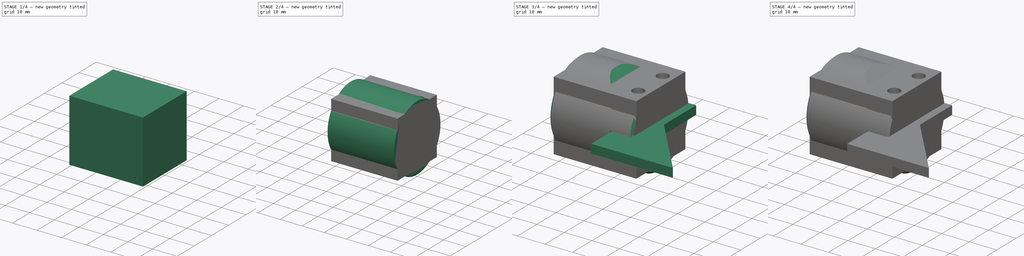
[diagram: build sequence overview — one tinted view per stage of 4, left to right]
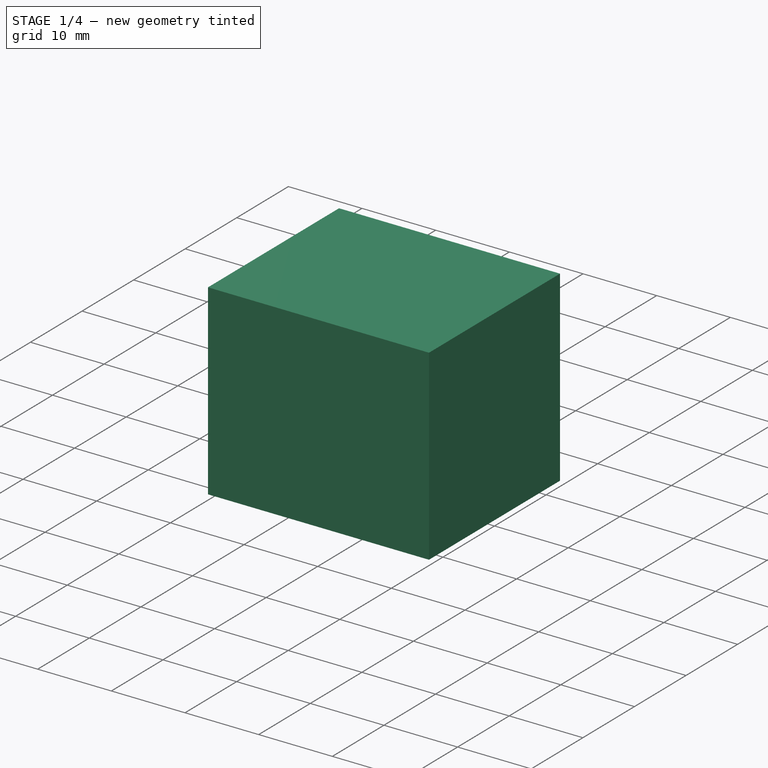
[diagram: stage 1 of 4 — iso view after this stage's code; geometry added in this stage tinted green]
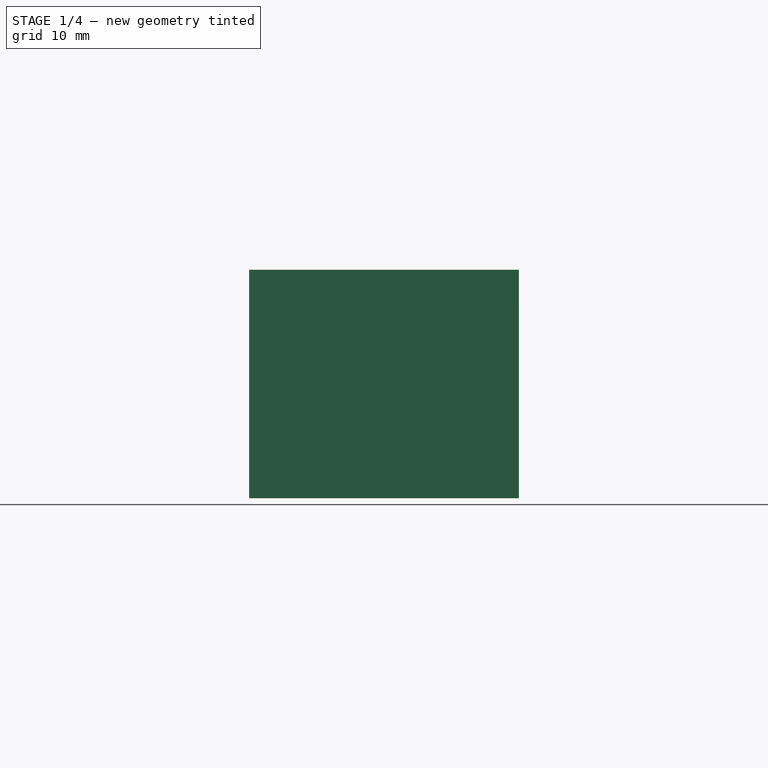
[diagram: stage 1 of 4 — front view after this stage's code; geometry added in this stage tinted green]
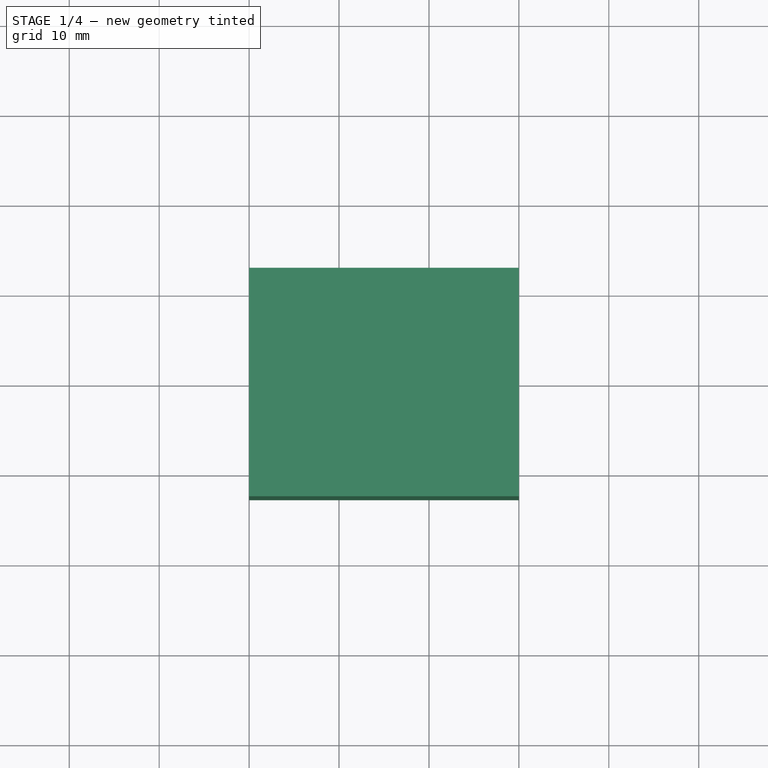
[diagram: stage 1 of 4 — top view after this stage's code; geometry added in this stage tinted green]
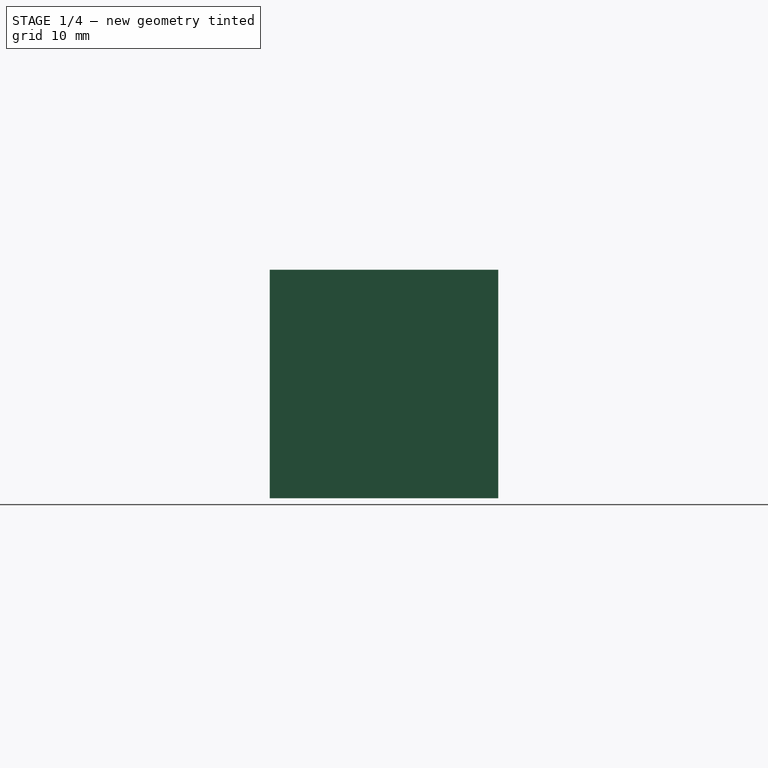
[diagram: stage 1 of 4 — right view after this stage's code; geometry added in this stage tinted green]
FCSTD DOCUMENT  (FreeCAD 0.17R11939 (Git))
Label: holesaw_pointer
License: All rights reserved
LicenseURL: http://en.wikipedia.org/wiki/All_rights_reserved
objects: Sketcher::SketchObject×10, PartDesign::Pocket×6, Drawing::FeatureViewPart×4, PartDesign::Pad×3, PartDesign::Body×3, PartDesign::Plane×1, PartDesign::Chamfer×1, App::FeaturePython×1, PartDesign::ShapeBinder×1, Drawing::FeaturePage×1
note: 35 computed .brp shape members not serialized (recipe doc carries the construction recipe); baked Part::Feature solids carry a one-line shape summary decoded from their .brp

FEATURE [PartDesign::Body] Body
  Group = -> [Sketch001,Pad,Chamfer,DatumPlane,Sketch002,Pocket,Sketch003,Pocket001,Sketch004,Pocket002]
  Origin = -> Origin
  Tip = -> Pocket002
FEATURE [App::FeaturePython] Section  # WARN: FeaturePython — macro-defined, semantics opaque (R4)
  Objects = -> [Pocket002]
  OnlySolids = true
  Placement = pos=(0,0,0) rot=(1,0,0;1.5708rad)
FEATURE [Sketcher::SketchObject] Sketch006
  MapMode = 5
  Support = -> [XY_Plane002]
  sketch-geometry (4):
    g0: LineSegment StartX=0 StartY=12.7 StartZ=0 EndX=30 EndY=12.7 EndZ=0
    g1: LineSegment StartX=30 StartY=12.7 StartZ=0 EndX=30 EndY=-12.7 EndZ=0
    g2: LineSegment StartX=30 StartY=-12.7 StartZ=0 EndX=0 EndY=-12.7 EndZ=0
    g3: LineSegment StartX=0 StartY=-12.7 StartZ=0 EndX=0 EndY=12.7 EndZ=0
  constraints (12):
    c: Coincident(g0,g1)
    c: Coincident(g1,g2)
    c: Coincident(g2,g3)
    c: Coincident(g3,g0)
    c: Horizontal(g0)
    c: Horizontal(g2)
    c: Vertical(g1)
    c: Vertical(g3)
    c: PointOnObject(g0,g-2)
    c: Distance(g2) = 30
    c: Symmetric(g2,g0,g-1)
    c: Distance(g3) = 25.4
FEATURE [PartDesign::Pad] Pad002
  Length = 25.4
  Length2 = 100
  Midplane = true
  Profile = -> Sketch006
  Type = 0
FEATURE [Sketcher::SketchObject] Sketch007
  MapMode = 5
  Placement = pos=(0,0,0) rot=(0.57735,-0.57735,-0.57735;2.0944rad)
  Support = -> [Pad002]
  sketch-geometry (1):
    g0: Circle CenterX=0 CenterY=0 CenterZ=0 NormalX=0 NormalY=0 NormalZ=1 Radius=7.25
  constraints (2):
    c: Coincident(g0,g-1)
    c: Radius(g0) = 7.25
FEATURE [PartDesign::Pocket] Pocket003
  BaseFeature = -> Pad002
  Length = 17
  Profile = -> Sketch007
  Type = 0
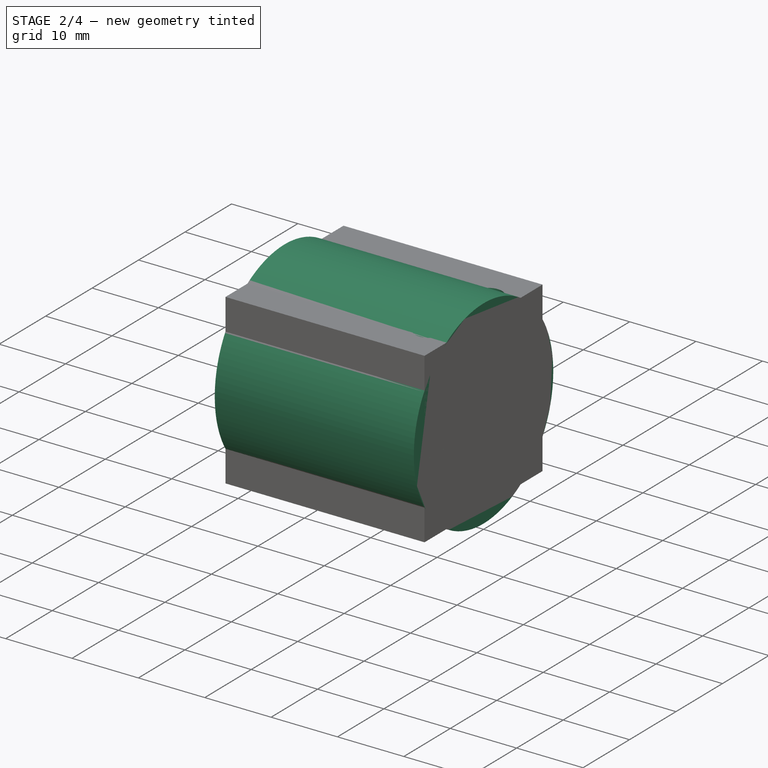
[diagram: stage 2 of 4 — iso view after this stage's code; geometry added in this stage tinted green]
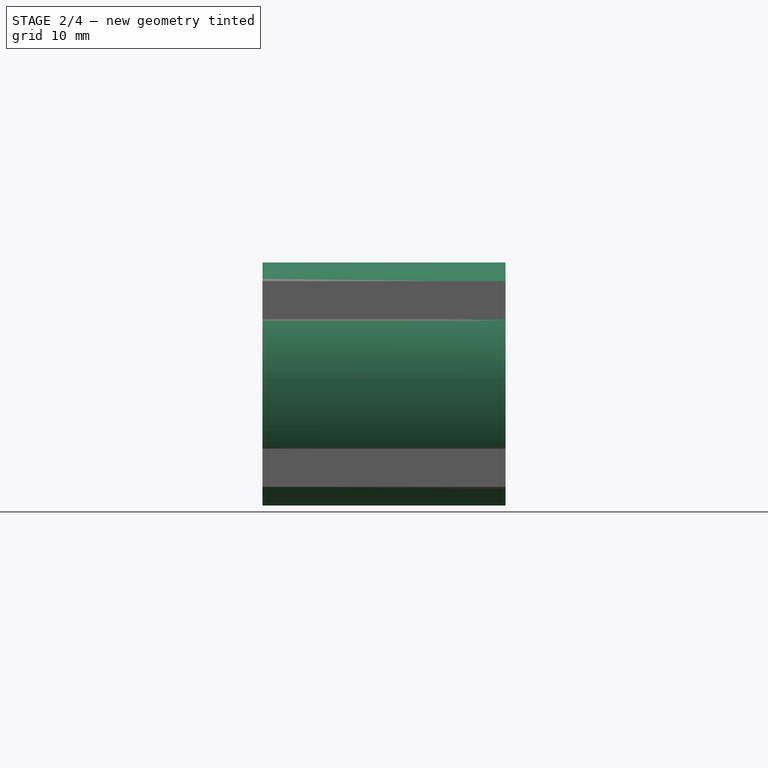
[diagram: stage 2 of 4 — front view after this stage's code; geometry added in this stage tinted green]
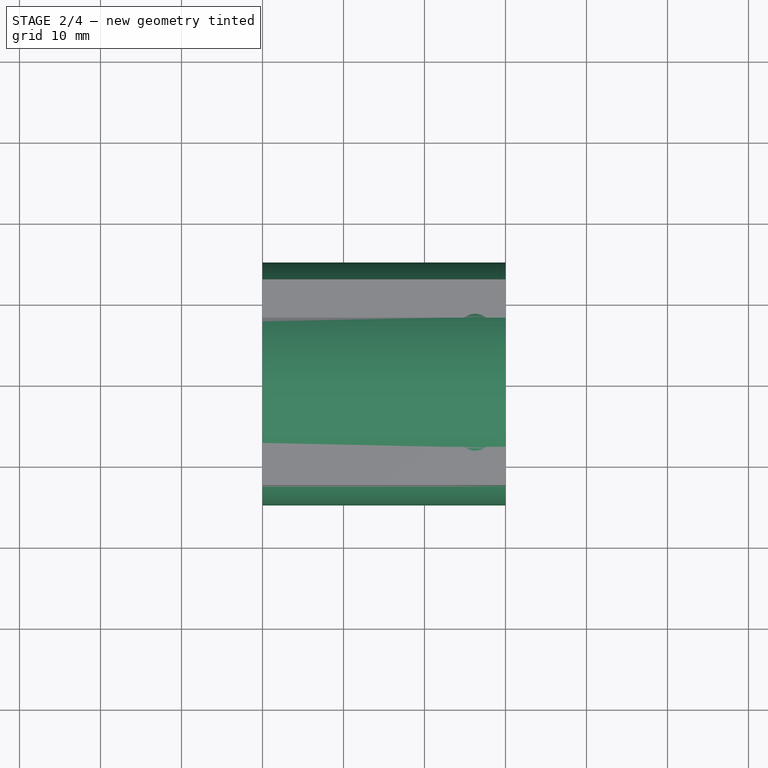
[diagram: stage 2 of 4 — top view after this stage's code; geometry added in this stage tinted green]
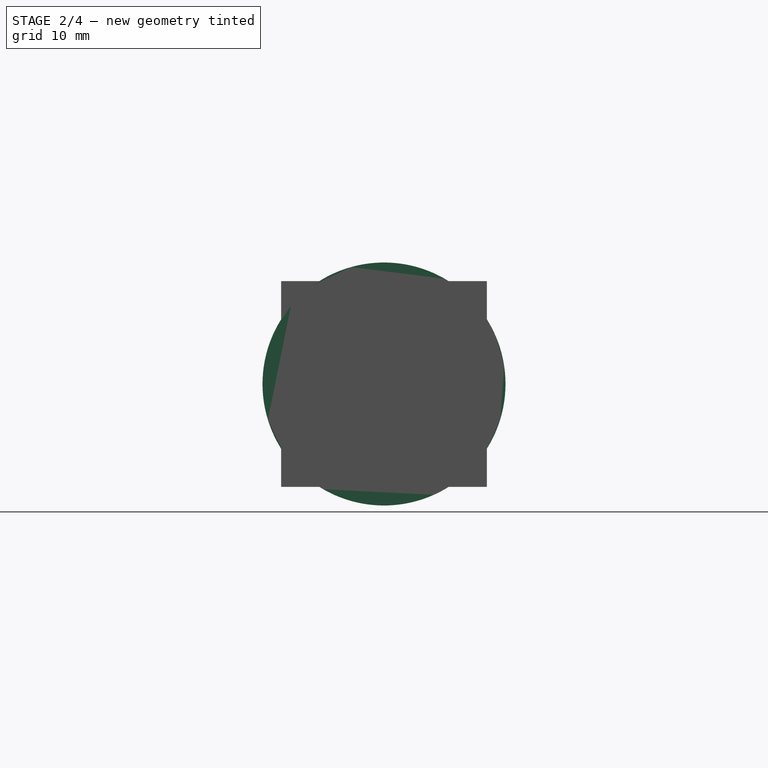
[diagram: stage 2 of 4 — right view after this stage's code; geometry added in this stage tinted green]
FEATURE [Sketcher::SketchObject] Sketch
  sketch-geometry (12):
    g0: LineSegment StartX=0 StartY=12.7 StartZ=0 EndX=0 EndY=7.25 EndZ=0
    g1: LineSegment StartX=0 StartY=7.25 StartZ=0 EndX=20 EndY=7.25 EndZ=0
    g2: LineSegment StartX=0 StartY=12.7 StartZ=0 EndX=35 EndY=12.7 EndZ=0
    g3: LineSegment StartX=35 StartY=12.7 StartZ=0 EndX=56.997 EndY=0 EndZ=0
    g4: LineSegment StartX=0 StartY=-12.7 StartZ=0 EndX=0 EndY=-7.25 EndZ=0
    g5: LineSegment StartX=0 StartY=-7.25 StartZ=0 EndX=20 EndY=-7.25 EndZ=0
    g6: LineSegment StartX=0 StartY=-12.7 StartZ=0 EndX=35 EndY=-12.7 EndZ=0
    g7: LineSegment StartX=35 StartY=-12.7 StartZ=0 EndX=56.997 EndY=0 EndZ=0
    g8: LineSegment StartX=20 StartY=7.25 StartZ=0 EndX=23.3807 EndY=0 EndZ=0
    g9: LineSegment StartX=23.3807 StartY=0 StartZ=0 EndX=20 EndY=-7.25 EndZ=0
    g10: Circle [constr] CenterX=63.803 CenterY=-25.4 CenterZ=0 NormalX=0 NormalY=0 NormalZ=1 Radius=25.4
    g11: GeomPoint X=63.803 Y=0 Z=0
  constraints (36):
    c: PointOnObject(g0,g-2)
    c: PointOnObject(g0,g-2)
    c: Coincident(g1,g0)
    c: Horizontal(g1)
    c: Coincident(g2,g0)
    c: Horizontal(g2)
    c: PointOnObject(g3,g-1)
    c: Coincident(g5,g4)
    c: Horizontal(g5)
    c: Coincident(g6,g4)
    c: Horizontal(g6)
    c: Symmetric(g4,g0,g-1)
    c: Equal(g0,g4)
    c: Equal(g2,g6)
    c: Coincident(g3,g7)
    c: Vertical(g4)
    c: DistanceY(g4,g0) = 25.4
    c: Distance(g1) = 20
    c: Angle(g-1,g7) = 0.523599
    c: DistanceX(g0,g3) = 56.997
    c: Coincident(g8,g1)
    c: PointOnObject(g8,g-1)
    c: Coincident(g9,g8)
    c: Coincident(g9,g5)
    c: Angle(g8,g9) = 2.26893
    c: Distance(g0,g4) = 14.5
    c: Equal(g5,g1)
    c: Coincident(g2,g3)
    c: Coincident(g6,g7)
    c: Distance(g2) = 35
    c: Radius(g10) = 25.4
    c: DistanceY(g10,g-1) = 25.4
    c: Tangent(g10,g7)
    c: PointOnObject(g11,g10)
    c: PointOnObject(g11,g-1)
    c: Distance(g11,g3) = 6.80594
FEATURE [Sketcher::SketchObject] Sketch001
  MapMode = 5
  Placement = pos=(0,0,0) rot=(0.57735,0.57735,0.57735;2.0944rad)
  Support = -> [YZ_Plane]
  sketch-geometry (1):
    g0: Circle CenterX=0 CenterY=0 CenterZ=0 NormalX=0 NormalY=0 NormalZ=1 Radius=15
  constraints (2):
    c: Coincident(g0,g-1)
    c: Radius(g0) = 15
FEATURE [PartDesign::Pad] Pad
  Length = 30
  Length2 = 100
  Placement = pos=(0,0,0) rot=(0.57735,0.57735,0.57735;2.0944rad)
  Profile = -> Sketch001
  Type = 0
FEATURE [Sketcher::SketchObject] Sketch008
  ExternalGeometry = -> [Pocket003]
  MapMode = 5
  Placement = pos=(0,-12.7,0) rot=(1,0,0;1.5708rad)
  Support = -> [Pocket003]
  expr: Constraints[17] = -(1in / 16)
  sketch-geometry (10):
    g0: LineSegment StartX=41 StartY=-1.5875 StartZ=0 EndX=22.5 EndY=-1.5875 EndZ=0
    g1: LineSegment StartX=22.5 StartY=-1.5875 StartZ=0 EndX=22.5 EndY=3.175 EndZ=0
    g2: LineSegment StartX=22.5 StartY=3.175 StartZ=0 EndX=36 EndY=3.175 EndZ=0
    g3: LineSegment StartX=36 StartY=3.175 StartZ=0 EndX=36 EndY=18.175 EndZ=0
    g4: LineSegment StartX=36 StartY=18.175 StartZ=0 EndX=21 EndY=18.175 EndZ=0
    g5: LineSegment StartX=21 StartY=18.175 StartZ=0 EndX=21 EndY=33.175 EndZ=0
    g6: LineSegment StartX=21 StartY=33.175 StartZ=0 EndX=41 EndY=33.175 EndZ=0
    g7: LineSegment StartX=41 StartY=33.175 StartZ=0 EndX=41 EndY=-1.5875 EndZ=0
    g8: GeomPoint X=30 Y=3.175 Z=0
    g9: GeomPoint X=30 Y=18.175 Z=0
  constraints (28):
    c: Horizontal(g0)
    c: Coincident(g0,g1)
    c: Vertical(g1)
    c: Coincident(g1,g2)
    c: Horizontal(g2)
    c: Coincident(g2,g3)
    c: Vertical(g3)
    c: Coincident(g3,g4)
    c: Horizontal(g4)
    c: Coincident(g4,g5)
    c: Vertical(g5)
    c: Coincident(g5,g6)
    c: Horizontal(g6)
    c: Coincident(g6,g7)
    c: Vertical(g7)
    c: Coincident(g0,g7)
    c: Distance(g1) = 4.7625
    c: DistanceY(g-1,g0) = -1.5875
    c: Distance(g3) = 15
    c: PointOnObject(g8,g2)
    c: PointOnObject(g8,g-3)
    c: PointOnObject(g9,g4)
    c: PointOnObject(g9,g-3)
    c: Distance(g8,g1) = 7.5
    c: Distance(g9,g4) = 9
    c: Distance(g5) = 15
    c: Distance(g6) = 20
    c: Distance(g4) = 15
FEATURE [PartDesign::Pocket] Pocket004
  BaseFeature = -> Pocket003
  Length = 5
  Profile = -> Sketch008
  Type = 1
FEATURE [PartDesign::Body] Body001
  Group = -> [Sketch005,Pad001,ShapeBinder001]
  Origin = -> Origin001
  Tip = -> Pad001
FEATURE [Sketcher::SketchObject] Sketch010
  ExternalGeometry = -> [Pocket004]
  MapMode = 5
  Placement = pos=(0,0,12.7) rot=(0,0,1;0rad)
  Support = -> [Pocket004]
  sketch-geometry (9):
    g0: Circle [constr] CenterX=26.25 CenterY=-6.35 CenterZ=0 NormalX=0 NormalY=0 NormalZ=1 Radius=4.25
    g1: Circle CenterX=26.25 CenterY=-6.35 CenterZ=0 NormalX=0 NormalY=0 NormalZ=1 Radius=2.1
    g2: Circle CenterX=26.25 CenterY=6.35 CenterZ=0 NormalX=0 NormalY=0 NormalZ=1 Radius=2.1
    g3: Circle [constr] CenterX=26.25 CenterY=6.35 CenterZ=0 NormalX=0 NormalY=0 NormalZ=1 Radius=4.25
    g4: LineSegment [constr] StartX=30.5 StartY=6.35 StartZ=0 EndX=30 EndY=6.35 EndZ=0
    g5: LineSegment [constr] StartX=26.25 StartY=-6.35 StartZ=0 EndX=26.25 EndY=-12.7 EndZ=0
    g6: LineSegment [constr] StartX=26.25 StartY=6.35 StartZ=0 EndX=26.25 EndY=12.7 EndZ=0
    g7: LineSegment [constr] StartX=26.25 StartY=-6.35 StartZ=0 EndX=26.25 EndY=0 EndZ=0
    g8: LineSegment [constr] StartX=26.25 StartY=0 StartZ=0 EndX=26.25 EndY=6.35 EndZ=0
  constraints (25):
    c: Radius(g0) = 4.25
    c: Coincident(g1,g0)
    c: Radius(g1) = 2.1
    c: Equal(g2,g1)
    c: Equal(g3,g0)
    c: PointOnObject(g4,g3)
    c: PointOnObject(g4,g-3)
    c: Horizontal(g4)
    c: Perpendicular(g3,g4)
    c: DistanceX(g4,g4) = 0.5
    c: Coincident(g5,g0)
    c: Vertical(g5)
    c: DistanceY(g-3,g5) = 0
    c: Vertical(g6)
    c: DistanceY(g6,g-3) = 0
    c: Equal(g6,g5)
    c: Coincident(g7,g0)
    c: PointOnObject(g7,g-1)
    c: Vertical(g7)
    c: Coincident(g8,g7)
    c: Coincident(g8,g2)
    c: Vertical(g8)
    c: Coincident(g2,g3)
    c: Coincident(g2,g6)
    c: Equal(g6,g8)
FEATURE [PartDesign::Pocket] Pocket005
  BaseFeature = -> Pocket004
  Length = 5
  Profile = -> Sketch010
  Type = 2
FEATURE [PartDesign::Body] Body002
  Group = -> [Sketch006,Pad002,Sketch007,Pocket003,Sketch008,Pocket004,Sketch010,Pocket005]
  Origin = -> Origin002
  Tip = -> Pocket005
FEATURE [Drawing::FeatureViewPart] Ortho006  label="Ortho_0_002"
  Direction = (1,0,0)
  HiddenWidth = 0.15
  LineWidth = 0.35
  Rotation = -90
  ShowHiddenLines = true
  ShowSmoothLines = true
  Source = -> Pocket005
  Tolerance = 0.05
  ViewResult = <blob: 5947 chars omitted>
  Visible = true
  X = 170
  Y = 121.933
FEATURE [Drawing::FeatureViewPart] Ortho007  label="Ortho_1_002"
  Direction = (0.57735,0.57735,0.57735)
  HiddenWidth = 0.15
  LineWidth = 0.35
  Rotation = 120
  ShowHiddenLines = true
  ShowSmoothLines = true
  Source = -> Pocket005
  Tolerance = 0.05
  ViewResult = <blob: 3827 chars omitted>
  Visible = true
  X = 240.607
  Y = 65.8096
FEATURE [Drawing::FeatureViewPart] Ortho008  label="Ortho_1_003"
  Direction = (0,1,0)
  HiddenWidth = 0.15
  LineWidth = 0.35
  Rotation = -90
  ShowHiddenLines = true
  ShowSmoothLines = true
  Source = -> Pocket005
  Tolerance = 0.05
  ViewResult = <blob: 4758 chars omitted>
  Visible = true
  X = 245
  Y = 121.933
FEATURE [Drawing::FeatureViewPart] Ortho009  label="Ortho_0_003"
  Direction = (0,0,1)
  HiddenWidth = 0.15
  LineWidth = 0.35
  Rotation = 90
  ShowHiddenLines = true
  ShowSmoothLines = true
  Source = -> Pocket005
  Tolerance = 0.05
  ViewResult = <blob: 2415 chars omitted>
  Visible = true
  X = 170
  Y = 56.9333
FEATURE [Drawing::FeaturePage] Page
  EditableTexts = AUTHOR NAME | CREATION DATE | SUPERVISOR NAME | CHECK DATE | SCALE | WEIGHT | NUMBER | SHEET | TITLE | SUBTITLE
  Group = -> [Ortho006,Ortho007,Ortho008,Ortho009]
  Template = <path>
note: 1 file-system path scrubbed to <path> (originals preserved in the JSON sidecar)
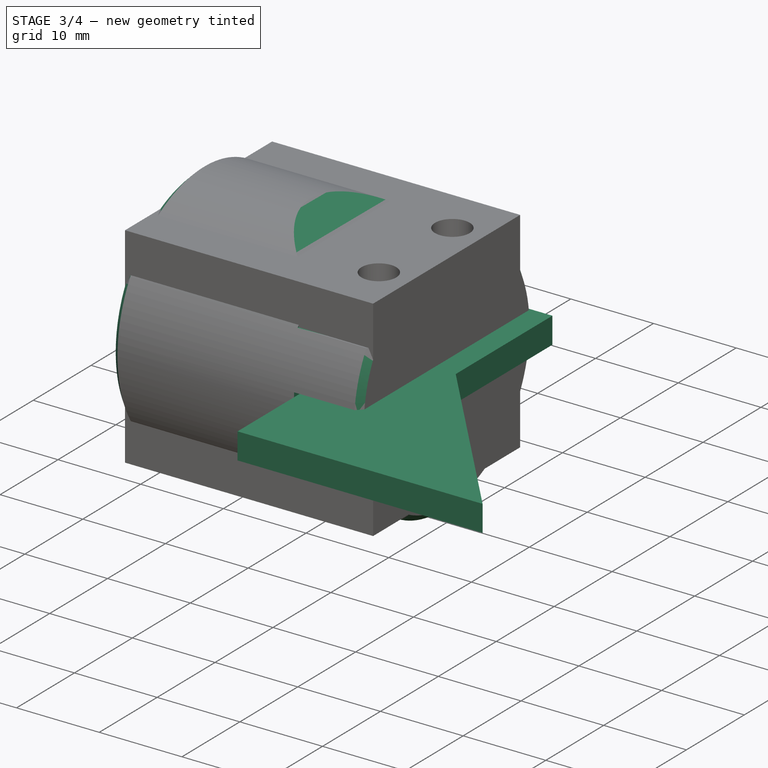
[diagram: stage 3 of 4 — iso view after this stage's code; geometry added in this stage tinted green]
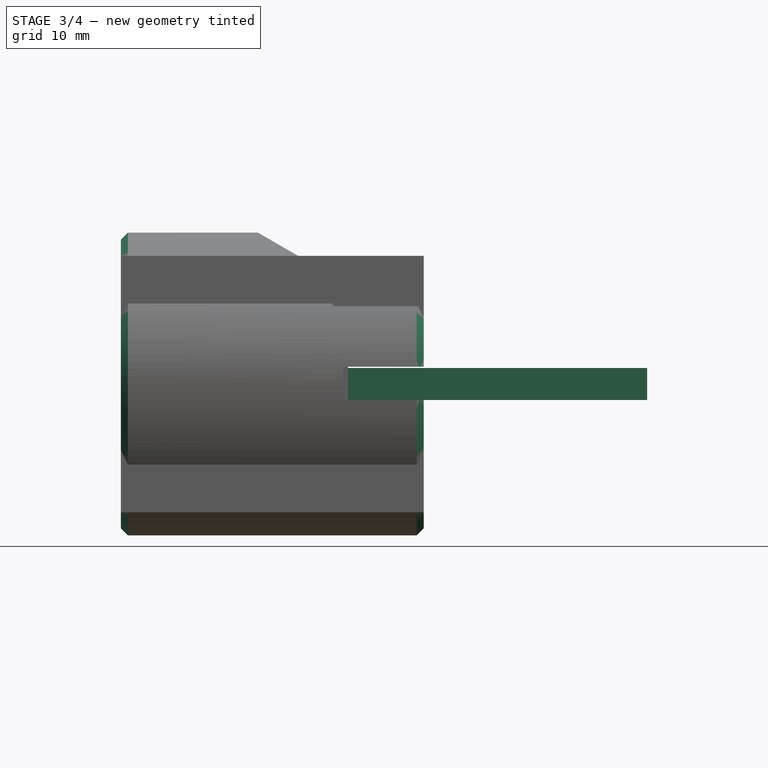
[diagram: stage 3 of 4 — front view after this stage's code; geometry added in this stage tinted green]
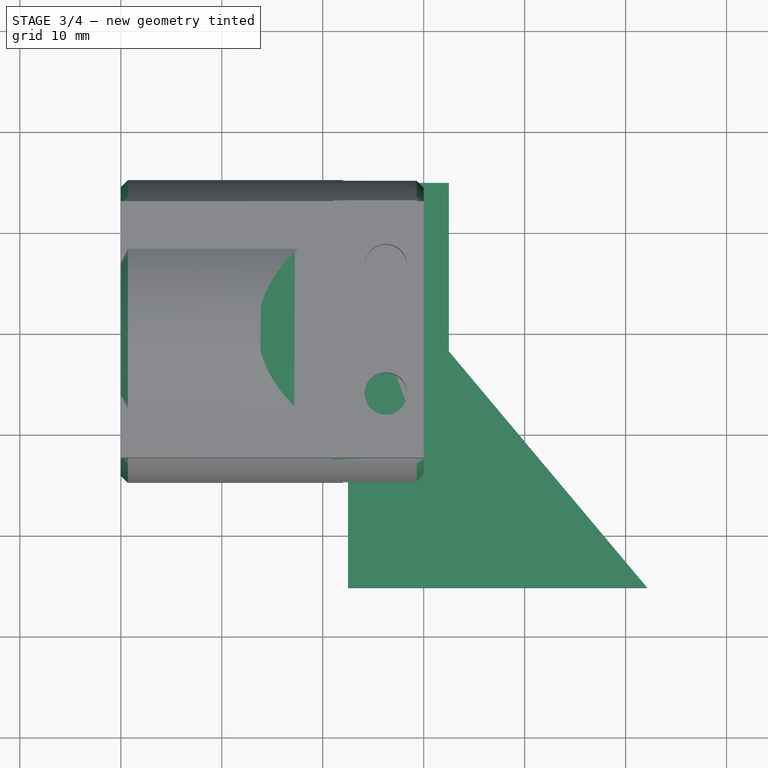
[diagram: stage 3 of 4 — top view after this stage's code; geometry added in this stage tinted green]
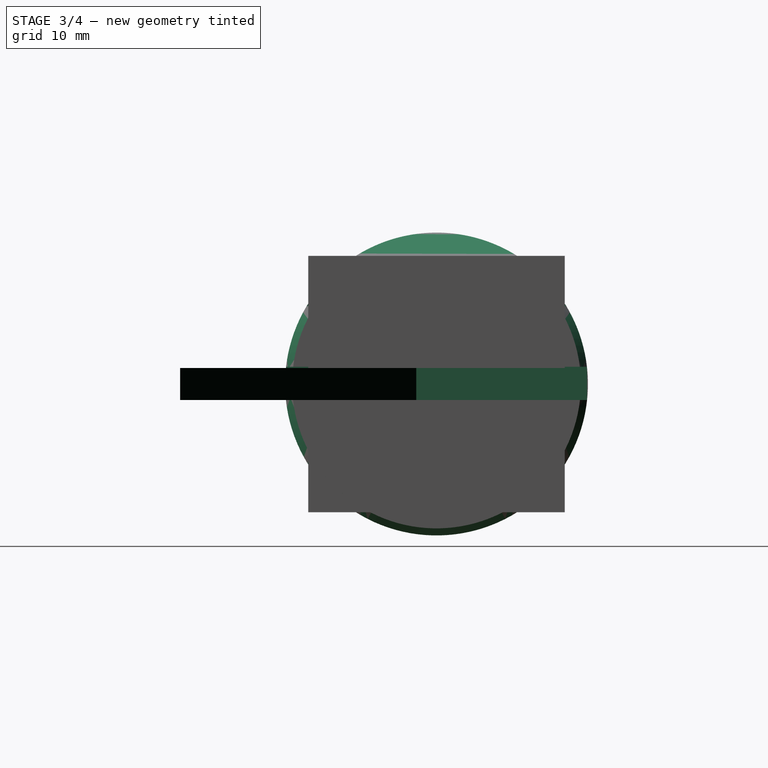
[diagram: stage 3 of 4 — right view after this stage's code; geometry added in this stage tinted green]
FEATURE [PartDesign::Plane] DatumPlane
  MapMode = 45
  Placement = pos=(15,0,0) rot=(1,0,0;1.5708rad)
  Support = -> [Pad]
  superPlacement = pos=(0,0,0) rot=(0,-1,0;1.5708rad)
FEATURE [Sketcher::SketchObject] Sketch002
  ExternalGeometry = -> [Pad]
  MapMode = 5
  Placement = pos=(15,0,0) rot=(1,0,0;1.5708rad)
  Support = -> [DatumPlane]
  sketch-geometry (13):
    g0: LineSegment StartX=15 StartY=-1.5875 StartZ=0 EndX=7 EndY=-1.5875 EndZ=0
    g1: LineSegment StartX=7 StartY=-1.5875 StartZ=0 EndX=7 EndY=1.7125 EndZ=0
    g2: LineSegment StartX=7 StartY=1.7125 StartZ=0 EndX=15 EndY=1.7125 EndZ=0
    g3: LineSegment StartX=15 StartY=1.7125 StartZ=0 EndX=15 EndY=7.7125 EndZ=0
    g4: LineSegment StartX=15 StartY=7.7125 StartZ=0 EndX=6 EndY=7.7125 EndZ=0
    g5: LineSegment StartX=-4.99852 StartY=38.7125 StartZ=0 EndX=16 EndY=38.7125 EndZ=0
    g6: LineSegment StartX=16 StartY=38.7125 StartZ=0 EndX=16 EndY=-1.5875 EndZ=0
    g7: LineSegment StartX=16 StartY=-1.5875 StartZ=0 EndX=15 EndY=-1.5875 EndZ=0
    g8: LineSegment StartX=-4.99852 StartY=38.7125 StartZ=0 EndX=-4.99852 EndY=17.0625 EndZ=0
    g9: LineSegment StartX=-4.99852 StartY=17.0625 StartZ=0 EndX=6 EndY=10.7125 EndZ=0
    g10: LineSegment StartX=6 StartY=10.7125 StartZ=0 EndX=6 EndY=7.7125 EndZ=0
    g11: LineSegment [constr] StartX=-4.99852 StartY=17.0625 StartZ=0 EndX=6 EndY=23.4125 EndZ=0
    g12: LineSegment [constr] StartX=-4.99852 StartY=17.0625 StartZ=0 EndX=16 EndY=17.0625 EndZ=0
  constraints (38):
    c: PointOnObject(g0,g-3)
    c: Horizontal(g0)
    c: Coincident(g1,g0)
    c: Vertical(g1)
    c: Coincident(g2,g1)
    c: PointOnObject(g2,g-3)
    c: Horizontal(g2)
    c: Coincident(g3,g2)
    c: PointOnObject(g3,g-3)
    c: Coincident(g4,g3)
    c: Horizontal(g4)
    c: Horizontal(g5)
    c: Vertical(g6)
    c: Coincident(g7,g6)
    c: Coincident(g7,g0)
    c: Horizontal(g7)
    c: Coincident(g5,g6)
    c: Distance(g1) = 3.3
    c: DistanceY(g0,g-1) = 1.5875
    c: Distance(g7) = 1
    c: DistanceY(g1,g4) = 6
    c: Distance(g4) = 9
    c: Distance(g2) = 8
    c: Distance(g6) = 40.3
    c: Coincident(g8,g5)
    c: Coincident(g9,g8)
    c: Coincident(g10,g9)
    c: Coincident(g10,g4)
    c: Vertical(g10)
    c: Vertical(g8)
    c: Coincident(g11,g8)
    c: Coincident(g12,g8)
    c: PointOnObject(g12,g6)
    c: Horizontal(g12)
    c: Symmetric(g11,g9,g12)
    c: Angle(g9,g11) = 1.0472
    c: Distance(g9,g11) = 12.7
    c: Distance(g10) = 3
FEATURE [PartDesign::Chamfer] Chamfer
  Base = -> Pad [Edge3,Edge2]
  BaseFeature = -> Pad
  Placement = pos=(0,0,0) rot=(0.57735,0.57735,0.57735;2.0944rad)
  Size = 0.7
FEATURE [PartDesign::Pocket] Pocket
  BaseFeature = -> Chamfer
  Length = 5
  Midplane = true
  Placement = pos=(0,0,0) rot=(0.57735,0.57735,0.57735;2.0944rad)
  Profile = -> Sketch002
  Type = 1
FEATURE [PartDesign::ShapeBinder] ShapeBinder001
FEATURE [Sketcher::SketchObject] Sketch005
  ExternalGeometry = -> [ShapeBinder001]
  MapMode = 5
  Placement = pos=(0,0,-1.5875) rot=(0,0,1;0rad)
  Support = -> [ShapeBinder001]
  sketch-geometry (6):
    g0: LineSegment StartX=22.5 StartY=14.7 StartZ=0 EndX=22.5 EndY=-25.4 EndZ=0
    g1: LineSegment StartX=22.5 StartY=-25.4 StartZ=0 EndX=52.1349 EndY=-25.4 EndZ=0
    g2: LineSegment StartX=52.1349 StartY=-25.4 StartZ=0 EndX=32.5 EndY=-2 EndZ=0
    g3: LineSegment StartX=32.5 StartY=-2 StartZ=0 EndX=32.5 EndY=14.7 EndZ=0
    g4: LineSegment StartX=32.5 StartY=14.7 StartZ=0 EndX=22.5 EndY=14.7 EndZ=0
    g5: LineSegment [constr] StartX=52.1349 StartY=0 StartZ=0 EndX=52.1349 EndY=-25.4 EndZ=0
  constraints (18):
    c: Coincident(g0,g4)
    c: Coincident(g3,g4)
    c: Coincident(g2,g3)
    c: Coincident(g0,g1)
    c: Coincident(g1,g2)
    c: PointOnObject(g0,g-3)
    c: Vertical(g0)
    c: Vertical(g3)
    c: Horizontal(g4)
    c: Distance(g4) = 10
    c: Horizontal(g1)
    c: PointOnObject(g5,g-1)
    c: Coincident(g5,g1)
    c: Vertical(g5)
    c: Angle(g5,g2) = 0.698132
    c: DistanceY(g0,g-1) = 25.4
    c: DistanceY(g2,g-1) = 2
    c: DistanceY(g-3,g0) = 2
FEATURE [PartDesign::Pad] Pad001
  Length = 3.175
  Length2 = 100
  Profile = -> Sketch005
  Type = 0
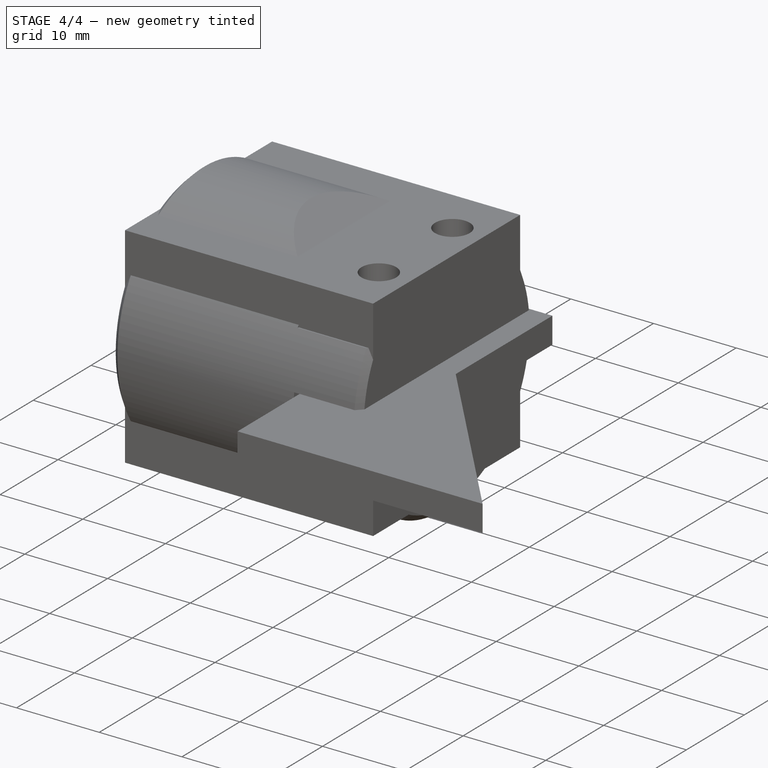
[diagram: stage 4 of 4 — iso view after this stage's code; geometry added in this stage tinted green]
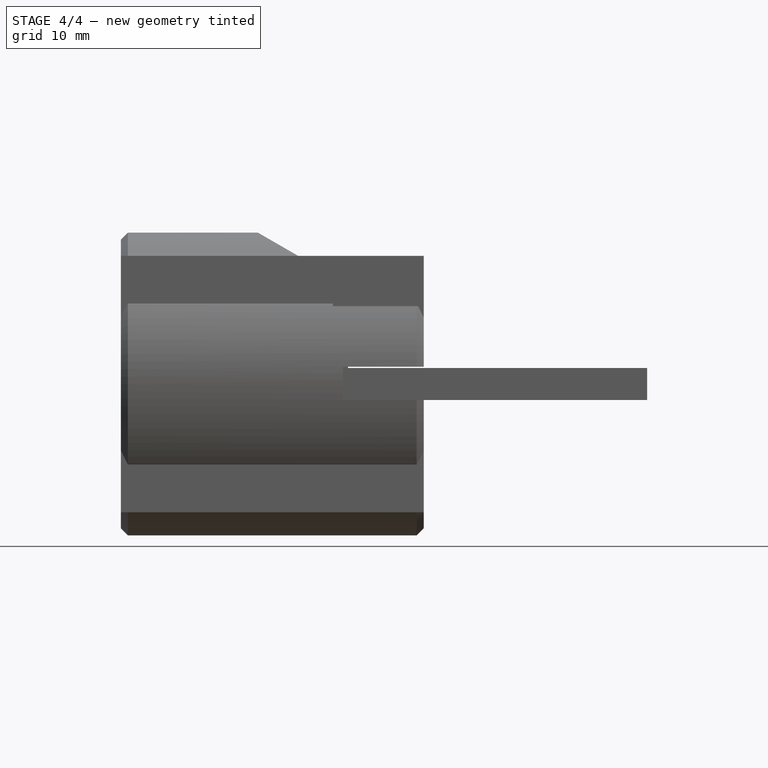
[diagram: stage 4 of 4 — front view after this stage's code; geometry added in this stage tinted green]
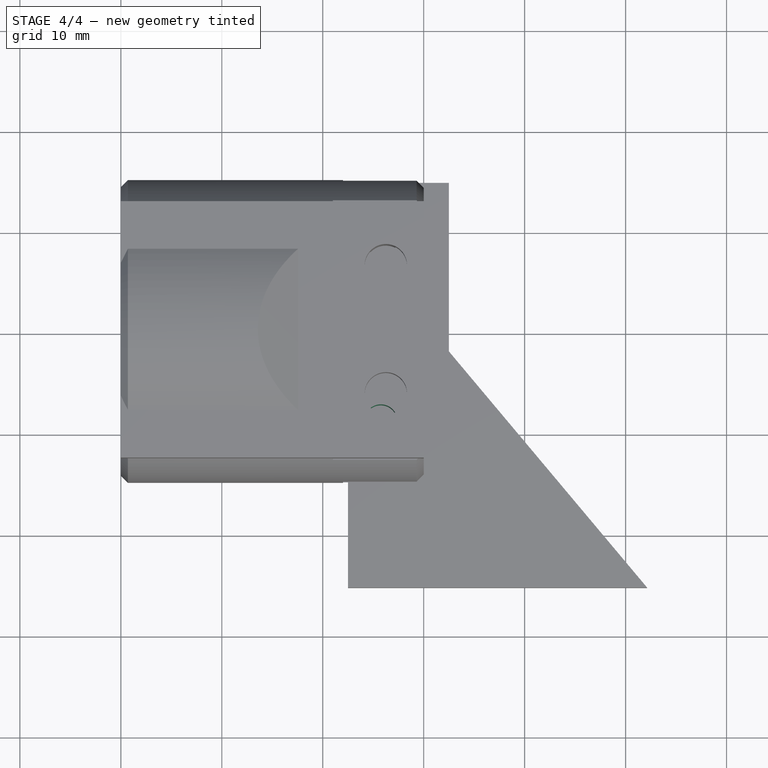
[diagram: stage 4 of 4 — top view after this stage's code; geometry added in this stage tinted green]
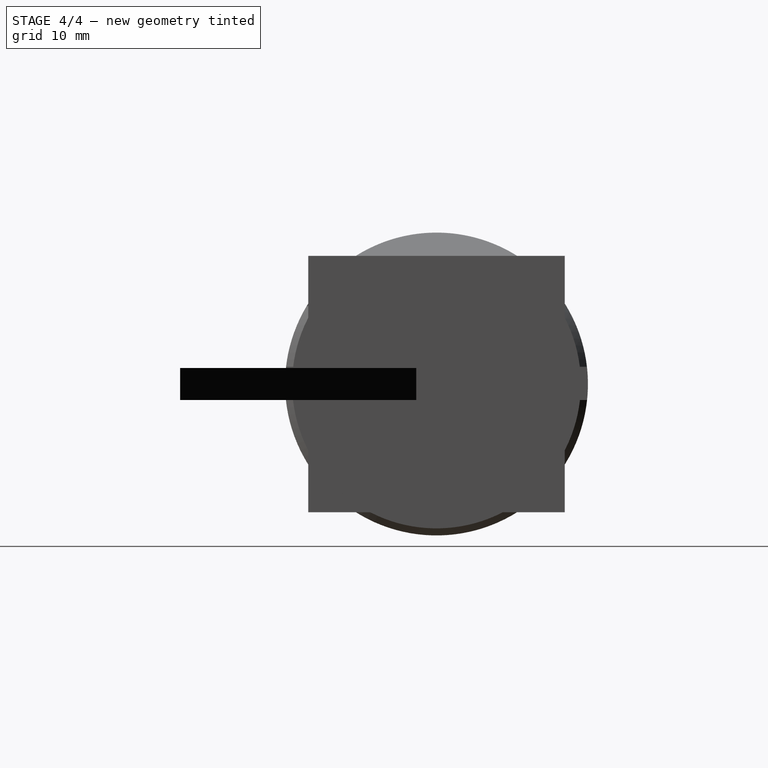
[diagram: stage 4 of 4 — right view after this stage's code; geometry added in this stage tinted green]
FEATURE [Sketcher::SketchObject] Sketch003
  ExternalGeometry = -> [Pocket]
  MapMode = 5
  Placement = pos=(0,0,7.7125) rot=(0,0,-1;1.5708rad)
  Support = -> [Pocket]
  sketch-geometry (8):
    g0: Circle CenterX=9 CenterY=25.75 CenterZ=0 NormalX=0 NormalY=0 NormalZ=1 Radius=1.65
    g1: Circle CenterX=0 CenterY=25.75 CenterZ=0 NormalX=0 NormalY=0 NormalZ=1 Radius=1.65
    g2: Circle [constr] CenterX=0 CenterY=25.75 CenterZ=0 NormalX=0 NormalY=0 NormalZ=1 Radius=4.25
    g3: LineSegment [constr] StartX=0 StartY=21.5 StartZ=0 EndX=0 EndY=21 EndZ=0
    g4: Circle CenterX=-9 CenterY=25.75 CenterZ=0 NormalX=0 NormalY=0 NormalZ=1 Radius=1.65
    g5: LineSegment [constr] StartX=-9 StartY=25.75 StartZ=0 EndX=0 EndY=25.75 EndZ=0
    g6: LineSegment [constr] StartX=0 StartY=25.75 StartZ=0 EndX=9 EndY=25.75 EndZ=0
    g7: Circle [constr] CenterX=-9 CenterY=25.75 CenterZ=0 NormalX=0 NormalY=0 NormalZ=1 Radius=4.25
  constraints (21):
    c: PointOnObject(g1,g-2)
    c: Radius(g1) = 1.65
    c: Equal(g0,g1)
    c: Coincident(g2,g1)
    c: Radius(g2) = 4.25
    c: PointOnObject(g3,g2)
    c: PointOnObject(g3,g-3)
    c: Vertical(g3)
    c: PointOnObject(g3,g-2)
    c: Distance(g3) = 0.5
    c: Equal(g4,g1)
    c: Coincident(g5,g4)
    c: Coincident(g5,g1)
    c: Coincident(g6,g1)
    c: Coincident(g6,g0)
    c: Horizontal(g6)
    c: Horizontal(g5)
    c: Coincident(g7,g4)
    c: Equal(g7,g2)
    c: Equal(g6,g5)
    c: Distance(g6) = 9
FEATURE [PartDesign::Pocket] Pocket001
  BaseFeature = -> Pocket
  Length = 0
  Placement = pos=(0,0,0) rot=(0.57735,0.57735,0.57735;2.0944rad)
  Profile = -> Sketch003
  Type = 2
FEATURE [Sketcher::SketchObject] Sketch004
  MapMode = 5
  Placement = pos=(0,0,0) rot=(0.57735,0.57735,-0.57735;4.18879rad)
  Support = -> [Pocket001]
  sketch-geometry (1):
    g0: Circle CenterX=0 CenterY=0 CenterZ=0 NormalX=0 NormalY=0 NormalZ=1 Radius=7.25
  constraints (2):
    c: Coincident(g0,g-1)
    c: Radius(g0) = 7.25
FEATURE [PartDesign::Pocket] Pocket002
  BaseFeature = -> Pocket001
  Length = 17
  Placement = pos=(0,0,0) rot=(0.57735,0.57735,0.57735;2.0944rad)
  Profile = -> Sketch004
  Type = 0
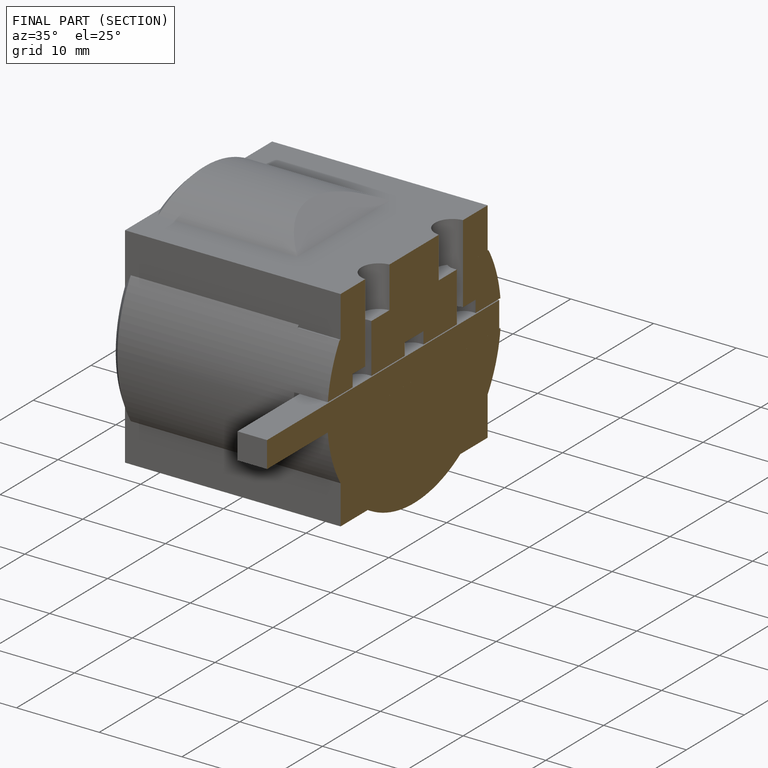
[diagram: finished part — half-section view (interior)]
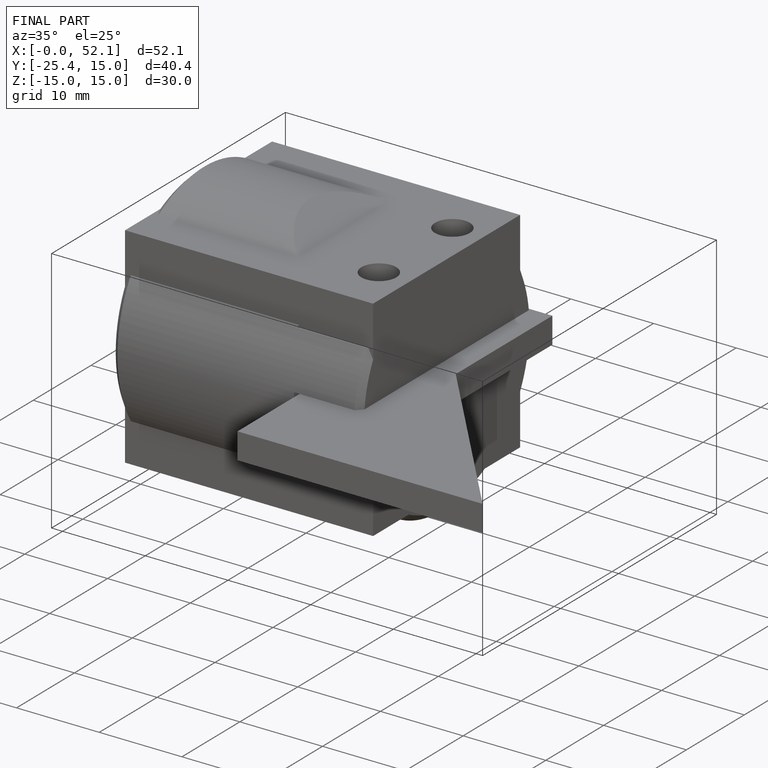
[diagram: finished part — iso view with bounding-box wireframe]
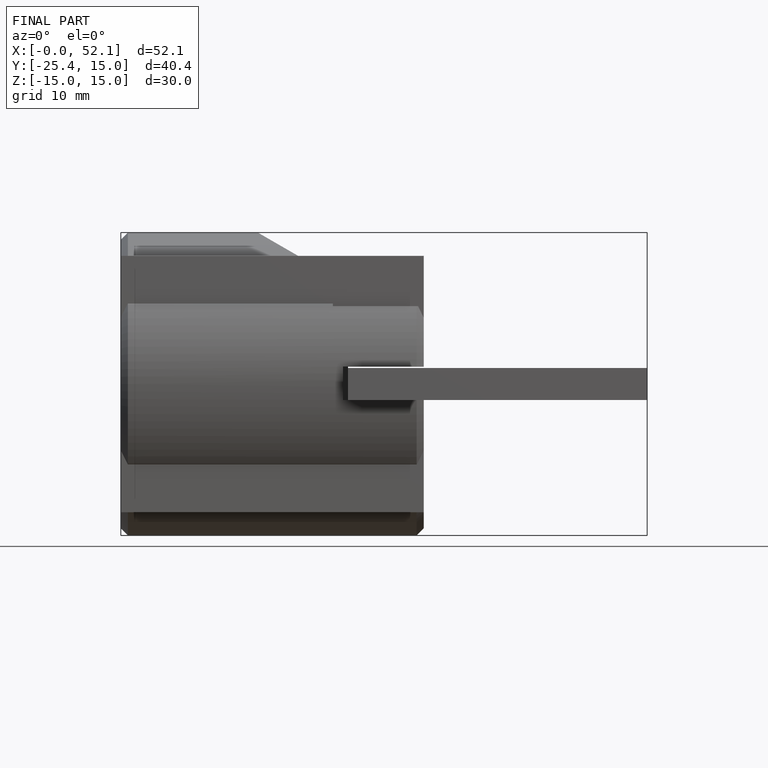
[diagram: finished part — front view with bounding-box wireframe]
